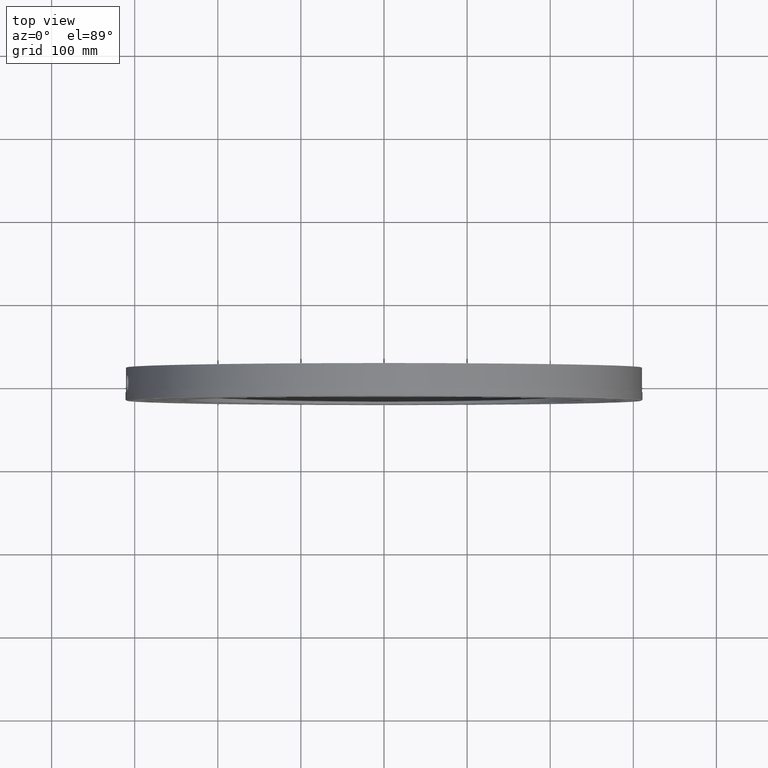
[diagram: clean part render]
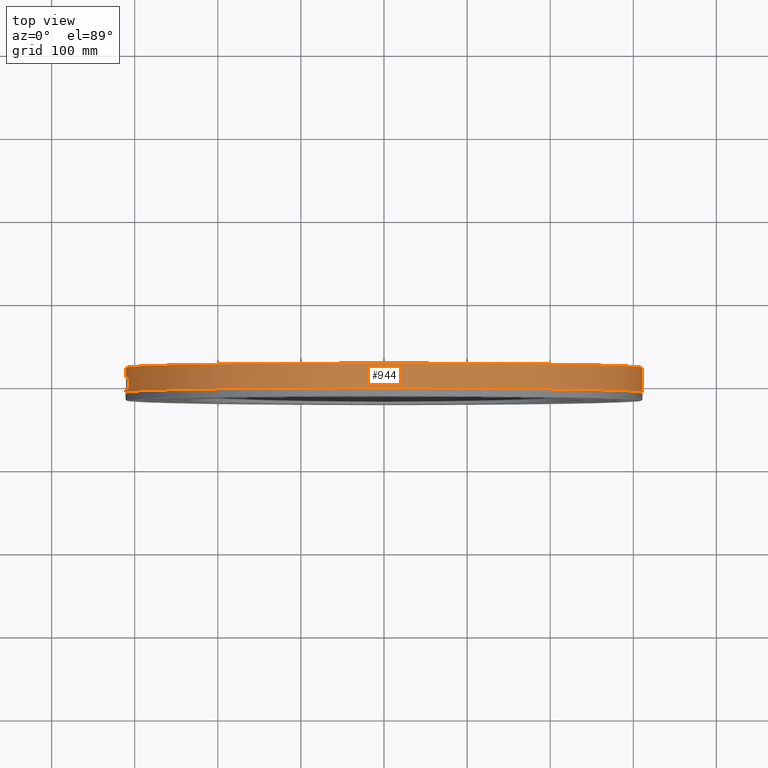
[diagram: same view with one face highlighted and labeled with its STEP entity id]
A machine part, top view. The second image highlights one B-rep face of the part: STEP entity #944.
In plain terms, the highlighted cylindrical surface (partial cylindrical patch) has radius 310.5 mm, axis along (0, 1, 0).
Its self-contained STEP definition (entity closure, byte-faithful):
#266 = CARTESIAN_POINT ( 'NONE',  ( -307.7302985157139100, -4.433173912538775200, 41.38087037389644300 ) ) ;
#280 = CYLINDRICAL_SURFACE ( 'NONE', #1937, 310.5000000000000000 ) ;
#294 = CARTESIAN_POINT ( 'NONE',  ( -308.7300314052077400, -9.999999995256116500, 33.11274175076658100 ) ) ;
#313 = CIRCLE ( 'NONE', #8749, 310.5000000000000000 ) ;
#346 = CARTESIAN_POINT ( 'NONE',  ( -309.6829907484959700, 0.6531625798642262100, 22.50991529981950400 ) ) ;
#375 = CARTESIAN_POINT ( 'NONE',  ( -309.3068005799179900, 8.496033356811509000, 27.19607522446148800 ) ) ;
#384 = B_SPLINE_CURVE_WITH_KNOTS ( 'NONE', 3,
 ( #3807, #8086, #346, #5225, #1042, #5931, #1747, #6646, #2445, #7389, #3127, #8117, #3838, #8834, #4536, #375, #5257, #1068, #5958, #1770, #6681, #2469, #7413, #3162, #8146, #3869, #8858, #4573, #403, #5283, #1104, #5985, #1802, #6700, #2506, #7571, #3312, #8307, #4023, #9019, #4741, #559, #5441, #1248, #6155, #1954, #6859 ),
 .UNSPECIFIED., .F., .F.,
 ( 4, 2, 2, 2, 2, 2, 2, 2, 2, 2, 2, 2, 2, 2, 1, 2, 2, 2, 2, 2, 2, 2, 2, 4 ),
 ( 0.01563684247969075000, 0.01661395957693949000, 0.01759107667418823000, 0.01954531086868571000, 0.02052242796593444600, 0.02149954506318318600, 0.02345377925768067300, 0.02540801345217816000, 0.02638513054942690600, 0.02736224764667564600, 0.02931648184117310900, 0.03127071603567056800, 0.03322495023016802700, 0.03420206732741677700, 0.03517918442466552700, 0.03615630152191427700, 0.03713341861916302800, 0.03908765281366051400, 0.04006476991090927200, 0.04104188700815802900, 0.04299612120265555000, 0.04397323829990431400, 0.04495035539715307900, 0.04690458959165060700 ),
 .UNSPECIFIED. ) ;
#403 = CARTESIAN_POINT ( 'NONE',  ( -308.3750878147172300, 9.252683567103133600, 36.26743458765004400 ) ) ;
#406 = ORIENTED_EDGE ( 'NONE', *, *, #5446, .F. ) ;
#559 = CARTESIAN_POINT ( 'NONE',  ( -307.6648481752327500, 3.214409324176332300, 41.86406921903423500 ) ) ;
#595 = CIRCLE ( 'NONE', #7094, 310.5000000000000000 ) ;
#643 = VERTEX_POINT ( 'NONE', #3129 ) ;
#822 = CARTESIAN_POINT ( 'NONE',  ( -309.5716319093600100, -5.282937318944207500, 23.99350192127523200 ) ) ;
#944 = ADVANCED_FACE ( 'NONE', ( #2136 ), #280, .T. ) ;
#946 = CARTESIAN_POINT ( 'NONE',  ( -309.4960586698536500, -6.606968673849833000, 24.95300628570005200 ) ) ;
#960 = CARTESIAN_POINT ( 'NONE',  ( -307.8662095344842600, -6.092929326632249100, 40.35812545876917300 ) ) ;
#1042 = CARTESIAN_POINT ( 'NONE',  ( -309.6747558255796100, 1.635499555718092200, 22.62299049451920800 ) ) ;
#1068 = CARTESIAN_POINT ( 'NONE',  ( -309.2304200967577100, 8.973363649970528000, 28.05139941649165200 ) ) ;
#1104 = CARTESIAN_POINT ( 'NONE',  ( -308.2363747425762300, 8.665827812270249500, 37.42553270134628500 ) ) ;
#1112 = EDGE_CURVE ( 'NONE', #4142, #4359, #1839, .T. ) ;
#1221 = CARTESIAN_POINT ( 'NONE',  ( -309.5289320525424200, -6.103257461856345300, 24.54025045297510800 ) ) ;
#1248 = CARTESIAN_POINT ( 'NONE',  ( -307.6283236498467800, 2.268087561200888800, 42.13156210125982400 ) ) ;
#1253 = CARTESIAN_POINT ( 'NONE',  ( -309.4394185302321000, -7.299326647832367100, 25.64272749511489000 ) ) ;
#1322 = CARTESIAN_POINT ( 'NONE',  ( -309.4193085108785200, -7.519502328663227400, 25.88448349597546300 ) ) ;
#1414 = CARTESIAN_POINT ( 'NONE',  ( -309.3763955170057300, -7.937953723013668700, 26.39243948764355000 ) ) ;
#1439 = DIRECTION ( 'NONE',  ( -1.000000000000000000, 6.704245317784761900E-017, 0.0000000000000000000 ) ) ;
#1502 = CARTESIAN_POINT ( 'NONE',  ( -309.1479835559230200, -9.362948266078918300, 28.94591482138228900 ) ) ;
#1536 = CARTESIAN_POINT ( 'NONE',  ( -309.1187199818340300, -9.474757862397147800, 29.25689157376516600 ) ) ;
#1622 = CARTESIAN_POINT ( 'NONE',  ( -309.2318009782491100, -8.986242539034980900, 28.04122233263581500 ) ) ;
#1629 = LINE ( 'NONE', #7342, #3467 ) ;
#1654 = CARTESIAN_POINT ( 'NONE',  ( -309.2830463759411800, -8.678886891344992800, 27.46894320935846400 ) ) ;
#1665 = CARTESIAN_POINT ( 'NONE',  ( -308.0382200859134500, -7.530371998835236400, 39.02457829117855000 ) ) ;
#1747 = CARTESIAN_POINT ( 'NONE',  ( -309.6468443625581700, 3.220780152351550500, 23.00314497392152500 ) ) ;
#1770 = CARTESIAN_POINT ( 'NONE',  ( -309.1192934094400500, 9.491241715666667700, 29.25542421083378400 ) ) ;
#1802 = CARTESIAN_POINT ( 'NONE',  ( -308.1016019377307800, 7.946962239145087800, 38.52210629529305000 ) ) ;
#1839 = B_SPLINE_CURVE_WITH_KNOTS ( 'NONE', 3,
 ( #6490, #5847, #6129, #6575, #5750, #1536, #1502, #1622, #1654, #5695, #1414, #1322, #1253, #946, #1221, #822, #3534, #6862, #6803, #6642, #4865, #4830, #4807, #4744, #4711 ),
 .UNSPECIFIED., .F., .F.,
 ( 4, 2, 2, 2, 2, 2, 2, 2, 2, 1, 2, 2, 4 ),
 ( 0.0000000000000000000, 0.001954605309961351600, 0.002931907964942021800, 0.003909210619922691900, 0.005863815929884030500, 0.006841118584864696800, 0.007818421239845366500, 0.009773026549806712900, 0.01075032920478738800, 0.01172763185976805900, 0.01270493451474873100, 0.01368223716972940200, 0.01563684247969075000 ),
 .UNSPECIFIED. ) ;
#1937 = AXIS2_PLACEMENT_3D ( 'NONE', #5927, #5906, #1439 ) ;
#1954 = CARTESIAN_POINT ( 'NONE',  ( -307.5935738764011400, 0.6597064978423101700, 42.38447015055074700 ) ) ;
#2136 = FACE_OUTER_BOUND ( 'NONE', #6643, .T. ) ;
#2175 = ORIENTED_EDGE ( 'NONE', *, *, #1112, .T. ) ;
#2314 = VERTEX_POINT ( 'NONE', #6376 ) ;
#2334 = CARTESIAN_POINT ( 'NONE',  ( 310.5000000000000000, 19.79999999999999700, 3.802528311352532000E-014 ) ) ;
#2337 = CARTESIAN_POINT ( 'NONE',  ( -307.5935738764011900, -0.6591846189428869400, 42.38447015055074700 ) ) ;
#2365 = CARTESIAN_POINT ( 'NONE',  ( -308.2012211927096800, -8.491678486419596400, 37.71381172843891200 ) ) ;
#2445 = CARTESIAN_POINT ( 'NONE',  ( -309.6079723624545200, 4.428516296153123500, 23.51972545661983500 ) ) ;
#2469 = CARTESIAN_POINT ( 'NONE',  ( -308.9340345866046400, 9.935141218736959000, 31.15161191577077600 ) ) ;
#2506 = CARTESIAN_POINT ( 'NONE',  ( -307.9505886895700000, 6.841140098115041600, 39.70816180471273100 ) ) ;
#2992 = ORIENTED_EDGE ( 'NONE', *, *, #6744, .T. ) ;
#3022 = CARTESIAN_POINT ( 'NONE',  ( -307.6024635969200200, -1.310947885160066000, 42.32009582281345700 ) ) ;
#3032 = ORIENTED_EDGE ( 'NONE', *, *, #5094, .F. ) ;
#3055 = CARTESIAN_POINT ( 'NONE',  ( -308.3046978268551500, -8.971224520575862700, 36.85846792949440200 ) ) ;
#3127 = CARTESIAN_POINT ( 'NONE',  ( -309.5713857250656800, 5.287848048434980800, 23.99666582120884000 ) ) ;
#3129 = CARTESIAN_POINT ( 'NONE',  ( -307.5935738764011400, 4.741400956495917700E-009, 42.38447015055074700 ) ) ;
#3162 = CARTESIAN_POINT ( 'NONE',  ( -308.7303836986359900, 9.999729334309982700, 33.10930650681192600 ) ) ;
#3312 = CARTESIAN_POINT ( 'NONE',  ( -307.8683669217173200, 6.089932836795524600, 40.34057872126997100 ) ) ;
#3467 = VECTOR ( 'NONE', #8528, 1000.000000000000000 ) ;
#3534 = CARTESIAN_POINT ( 'NONE',  ( -309.5847242813480900, -4.998770317582962100, 23.82377565850351800 ) ) ;
#3624 = EDGE_CURVE ( 'NONE', #2314, #8686, #1629, .T. ) ;
#3717 = CARTESIAN_POINT ( 'NONE',  ( -307.6390750891576400, -2.585124843666306100, 42.05304395173701700 ) ) ;
#3746 = EDGE_CURVE ( 'NONE', #4142, #2314, #8272, .T. ) ;
#3754 = CARTESIAN_POINT ( 'NONE',  ( -308.4448857444598400, -9.485142442154492300, 35.67021010246291700 ) ) ;
#3798 = DIRECTION ( 'NONE',  ( 5.904125040278464100E-017, 1.000000000000000000, 0.0000000000000000000 ) ) ;
#3807 = CARTESIAN_POINT ( 'NONE',  ( -309.6841431417542500, 4.741402181142245000E-009, 22.49403224318527400 ) ) ;
#3838 = CARTESIAN_POINT ( 'NONE',  ( -309.4962313450000700, 6.605398334160899100, 24.95096962799879500 ) ) ;
#3869 = CARTESIAN_POINT ( 'NONE',  ( -308.5534087269572300, 9.743918816109070800, 34.71523948523013600 ) ) ;
#3994 = CARTESIAN_POINT ( 'NONE',  ( 2.237695502833741500E-015, -10.00000000000002300, 0.0000000000000000000 ) ) ;
#4023 = CARTESIAN_POINT ( 'NONE',  ( -307.7712458959879900, 5.008230381763875800, 41.07605388602737400 ) ) ;
#4069 = LINE ( 'NONE', #8077, #5939 ) ;
#4074 = DIRECTION ( 'NONE',  ( -1.000000000000000000, 6.145558207969365100E-017, 0.0000000000000000000 ) ) ;
#4141 = DIRECTION ( 'NONE',  ( 5.904125040278464100E-017, 1.000000000000000000, 0.0000000000000000000 ) ) ;
#4142 = VERTEX_POINT ( 'NONE', #6976 ) ;
#4295 = CARTESIAN_POINT ( 'NONE',  ( 2.237695502833741500E-015, -10.00000000000002300, 0.0000000000000000000 ) ) ;
#4359 = VERTEX_POINT ( 'NONE', #4525 ) ;
#4410 = CARTESIAN_POINT ( 'NONE',  ( -307.5935738764011400, 4.741400956495917700E-009, 42.38447015055074700 ) ) ;
#4434 = CARTESIAN_POINT ( 'NONE',  ( -307.6797973531805000, -3.524343852517877600, 41.75413829878011300 ) ) ;
#4467 = CARTESIAN_POINT ( 'NONE',  ( -308.6596399630366800, -9.935240944321940000, 33.76232624852316600 ) ) ;
#4525 = CARTESIAN_POINT ( 'NONE',  ( -309.6841431417542500, 4.741402181142245000E-009, 22.49403224318527400 ) ) ;
#4536 = CARTESIAN_POINT ( 'NONE',  ( -309.3772797226820900, 7.953149621728879700, 26.38640486675420100 ) ) ;
#4573 = CARTESIAN_POINT ( 'NONE',  ( -308.4459443317460300, 9.472839044145638700, 35.65736427543960500 ) ) ;
#4706 = AXIS2_PLACEMENT_3D ( 'NONE', #4295, #4141, #4074 ) ;
#4711 = CARTESIAN_POINT ( 'NONE',  ( -309.6841431417542500, 4.741402181142245000E-009, 22.49403224318527400 ) ) ;
#4714 = DIRECTION ( 'NONE',  ( -1.000000000000000000, 6.145558207969365100E-017, 0.0000000000000000000 ) ) ;
#4741 = CARTESIAN_POINT ( 'NONE',  ( -307.6799019903394300, 3.526365716967212000, 41.75336683127124400 ) ) ;
#4744 = CARTESIAN_POINT ( 'NONE',  ( -309.6841431417543000, -0.6524433458122787000, 22.49403224318527700 ) ) ;
#4807 = CARTESIAN_POINT ( 'NONE',  ( -309.6795796709077400, -1.301537094954974500, 22.55713589933407800 ) ) ;
#4830 = CARTESIAN_POINT ( 'NONE',  ( -309.6655260667648700, -2.270018176564829700, 22.74897969308905500 ) ) ;
#4865 = CARTESIAN_POINT ( 'NONE',  ( -309.6596254460155300, -2.591029248933967000, 22.82926651028462600 ) ) ;
#5094 = EDGE_CURVE ( 'NONE', #6050, #8686, #595, .T. ) ;
#5144 = CARTESIAN_POINT ( 'NONE',  ( -307.7711885235623300, -5.007288195240403400, 41.07647475709927000 ) ) ;
#5179 = CARTESIAN_POINT ( 'NONE',  ( -308.7990485118488700, -9.999999995256121800, 32.45608784460648600 ) ) ;
#5225 = CARTESIAN_POINT ( 'NONE',  ( -309.6782953167490300, 1.308906161311895700, 22.57442037905776300 ) ) ;
#5232 = ORIENTED_EDGE ( 'NONE', *, *, #7113, .T. ) ;
#5257 = CARTESIAN_POINT ( 'NONE',  ( -309.2821639791545700, 8.663995401545273400, 27.47502077910238000 ) ) ;
#5283 = CARTESIAN_POINT ( 'NONE',  ( -308.3053819259096100, 8.974053905246364600, 36.85274328926649900 ) ) ;
#5441 = CARTESIAN_POINT ( 'NONE',  ( -307.6390747135682800, 2.585248921598542800, 42.05304749533223700 ) ) ;
#5446 = EDGE_CURVE ( 'NONE', #8162, #6050, #4069, .T. ) ;
#5695 = CARTESIAN_POINT ( 'NONE',  ( -309.3537736060293900, -8.134271006166693900, 26.65645625106454700 ) ) ;
#5750 = CARTESIAN_POINT ( 'NONE',  ( -309.0588679328050700, -9.665255180517924300, 29.88251829848941600 ) ) ;
#5771 = CARTESIAN_POINT ( 'NONE',  ( -310.5000000000000000, -10.00000000000000400, 0.0000000000000000000 ) ) ;
#5847 = CARTESIAN_POINT ( 'NONE',  ( -308.8681333755457700, -9.999999995256123600, 31.79878927312349600 ) ) ;
#5861 = CARTESIAN_POINT ( 'NONE',  ( -307.9209202106232500, -6.607581101050473500, 39.93957487436463800 ) ) ;
#5906 = DIRECTION ( 'NONE',  ( 5.904125040278464100E-017, 1.000000000000000000, 0.0000000000000000000 ) ) ;
#5920 = EDGE_CURVE ( 'NONE', #643, #4142, #8505, .T. ) ;
#5927 = CARTESIAN_POINT ( 'NONE',  ( 5.656216013723179100E-015, 47.90054390054388000, 0.0000000000000000000 ) ) ;
#5931 = CARTESIAN_POINT ( 'NONE',  ( -309.6607297555999600, 2.597412835416424300, 22.81444335106773000 ) ) ;
#5937 = DIRECTION ( 'NONE',  ( 1.000000000000000000, 0.0000000000000000000, 0.0000000000000000000 ) ) ;
#5939 = VECTOR ( 'NONE', #3798, 1000.000000000000000 ) ;
#5958 = CARTESIAN_POINT ( 'NONE',  ( -309.2031919534287000, 9.115140995402653000, 28.35009588587021400 ) ) ;
#5985 = CARTESIAN_POINT ( 'NONE',  ( -308.2020584702999000, 8.496010704659976700, 37.70697683685654800 ) ) ;
#6005 = ORIENTED_EDGE ( 'NONE', *, *, #3624, .T. ) ;
#6050 = VERTEX_POINT ( 'NONE', #8904 ) ;
#6060 = DIRECTION ( 'NONE',  ( -0.0000000000000000000, 1.000000000000000000, -0.0000000000000000000 ) ) ;
#6090 = CARTESIAN_POINT ( 'NONE',  ( 3.997124764836725200E-015, 19.79999999999999700, 0.0000000000000000000 ) ) ;
#6129 = CARTESIAN_POINT ( 'NONE',  ( -308.9339653870463300, -9.935122430777457900, 31.15226635131248000 ) ) ;
#6155 = CARTESIAN_POINT ( 'NONE',  ( -307.6024218943688900, 1.309054303830176500, 42.32039923662546200 ) ) ;
#6376 = CARTESIAN_POINT ( 'NONE',  ( 310.5000000000000000, -10.00000000000004300, 3.802528311352532000E-014 ) ) ;
#6490 = CARTESIAN_POINT ( 'NONE',  ( -308.7990485118488700, -9.999999995256121800, 32.45608784460648600 ) ) ;
#6566 = CARTESIAN_POINT ( 'NONE',  ( -308.1011576880053400, -7.944038419550297500, 38.52562770901506200 ) ) ;
#6575 = CARTESIAN_POINT ( 'NONE',  ( -309.0282073146040600, -9.744475187060736200, 30.19800077933954800 ) ) ;
#6642 = CARTESIAN_POINT ( 'NONE',  ( -309.6455855766710700, -3.217312366043569800, 23.01891338974696700 ) ) ;
#6643 = EDGE_LOOP ( 'NONE', ( #8043, #6005, #3032, #406, #2992, #2175, #5232, #8706 ) ) ;
#6646 = CARTESIAN_POINT ( 'NONE',  ( -309.6186704767311000, 4.128812153306110000, 23.37829373193914500 ) ) ;
#6681 = CARTESIAN_POINT ( 'NONE',  ( -309.0599858153882500, 9.680029383775339700, 29.87617476686454100 ) ) ;
#6700 = CARTESIAN_POINT ( 'NONE',  ( -308.0385593340654400, 7.532720275150761100, 39.02190046680898000 ) ) ;
#6744 = EDGE_CURVE ( 'NONE', #8162, #4142, #313, .T. ) ;
#6803 = CARTESIAN_POINT ( 'NONE',  ( -309.6292616038994100, -3.831338627697777000, 23.23825699390957700 ) ) ;
#6859 = CARTESIAN_POINT ( 'NONE',  ( -307.5935738764011400, 4.741400956495917700E-009, 42.38447015055074700 ) ) ;
#6862 = CARTESIAN_POINT ( 'NONE',  ( -309.6082427361712900, -4.421189125280980300, 23.51616092828635700 ) ) ;
#6976 = CARTESIAN_POINT ( 'NONE',  ( -308.7990485118488700, -9.999999995256121800, 32.45608784460648600 ) ) ;
#7094 = AXIS2_PLACEMENT_3D ( 'NONE', #6090, #6060, #5937 ) ;
#7113 = EDGE_CURVE ( 'NONE', #4359, #643, #384, .T. ) ;
#7301 = CARTESIAN_POINT ( 'NONE',  ( -308.2356182715761300, -8.662217990414214700, 37.43176443820476600 ) ) ;
#7342 = CARTESIAN_POINT ( 'NONE',  ( 310.5000000000000000, 47.90054390054385900, 3.802528311352532000E-014 ) ) ;
#7389 = CARTESIAN_POINT ( 'NONE',  ( -309.5843307924690200, 5.007727138268716500, 23.82889346411857200 ) ) ;
#7413 = CARTESIAN_POINT ( 'NONE',  ( -308.8668490402785100, 10.00026896622672000, 31.81109177627878300 ) ) ;
#7571 = CARTESIAN_POINT ( 'NONE',  ( -307.9223714232763900, 6.598825736144214600, 39.92626728956771100 ) ) ;
#8005 = CARTESIAN_POINT ( 'NONE',  ( -307.6283447807497900, -2.268694754447500900, 42.13140773571078100 ) ) ;
#8034 = CARTESIAN_POINT ( 'NONE',  ( -308.3395545008294800, -9.110741075082287900, 36.56582404235736300 ) ) ;
#8043 = ORIENTED_EDGE ( 'NONE', *, *, #3746, .T. ) ;
#8077 = CARTESIAN_POINT ( 'NONE',  ( -310.5000000000000000, 47.90054390054390200, 0.0000000000000000000 ) ) ;
#8086 = CARTESIAN_POINT ( 'NONE',  ( -309.6841431417541900, 0.3261597412177478800, 22.49403224318527000 ) ) ;
#8117 = CARTESIAN_POINT ( 'NONE',  ( -309.5290599600446600, 6.100435454823091200, 24.53858922880440100 ) ) ;
#8146 = CARTESIAN_POINT ( 'NONE',  ( -308.6605211067366100, 9.936176458310107800, 33.75423333871928800 ) ) ;
#8162 = VERTEX_POINT ( 'NONE', #5771 ) ;
#8272 = CIRCLE ( 'NONE', #4706, 310.5000000000000000 ) ;
#8307 = CARTESIAN_POINT ( 'NONE',  ( -307.8427096154226200, 5.824292113467302900, 40.53577601870646400 ) ) ;
#8505 = B_SPLINE_CURVE_WITH_KNOTS ( 'NONE', 3,
 ( #4410, #2337, #3022, #8005, #3717, #8726, #4434, #266, #5144, #960, #5861, #1665, #6566, #2365, #7301, #3055, #8034, #3754, #8753, #4467, #294, #5179 ),
 .UNSPECIFIED., .F., .F.,
 ( 4, 2, 2, 2, 2, 2, 2, 2, 2, 2, 4 ),
 ( 0.04690458959165060700, 0.04885727786372702500, 0.04983362199976522400, 0.05080996613580342900, 0.05276265440787982600, 0.05471534267995621600, 0.05666803095203261400, 0.05764437508807081900, 0.05862071922410902500, 0.06057340749618542200, 0.06252609576826181900 ),
 .UNSPECIFIED. ) ;
#8528 = DIRECTION ( 'NONE',  ( 5.904125040278464100E-017, 1.000000000000000000, 0.0000000000000000000 ) ) ;
#8686 = VERTEX_POINT ( 'NONE', #2334 ) ;
#8706 = ORIENTED_EDGE ( 'NONE', *, *, #5920, .T. ) ;
#8726 = CARTESIAN_POINT ( 'NONE',  ( -307.6647537232162800, -3.212236380180255600, 41.86476255458544700 ) ) ;
#8749 = AXIS2_PLACEMENT_3D ( 'NONE', #3994, #8996, #4714 ) ;
#8753 = CARTESIAN_POINT ( 'NONE',  ( -308.5163601915801900, -9.676763637993342800, 35.04744655409776000 ) ) ;
#8834 = CARTESIAN_POINT ( 'NONE',  ( -309.4197751522865500, 7.538898872016361900, 25.88186327998176100 ) ) ;
#8858 = CARTESIAN_POINT ( 'NONE',  ( -308.5172901783752800, 9.663269108952118100, 35.03469512877482100 ) ) ;
#8904 = CARTESIAN_POINT ( 'NONE',  ( -310.5000000000000000, 19.79999999999999700, 0.0000000000000000000 ) ) ;
#8996 = DIRECTION ( 'NONE',  ( 5.904125040278464100E-017, 1.000000000000000000, 0.0000000000000000000 ) ) ;
#9019 = CARTESIAN_POINT ( 'NONE',  ( -307.7303481534520400, 4.433788579158605400, 41.38049960406085100 ) ) ;